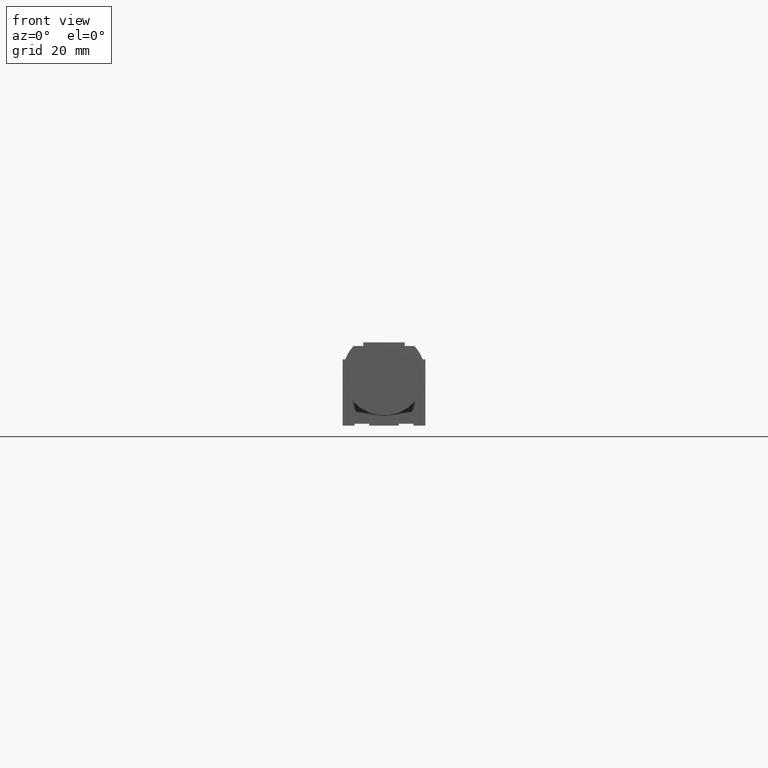
[diagram: clean part render]
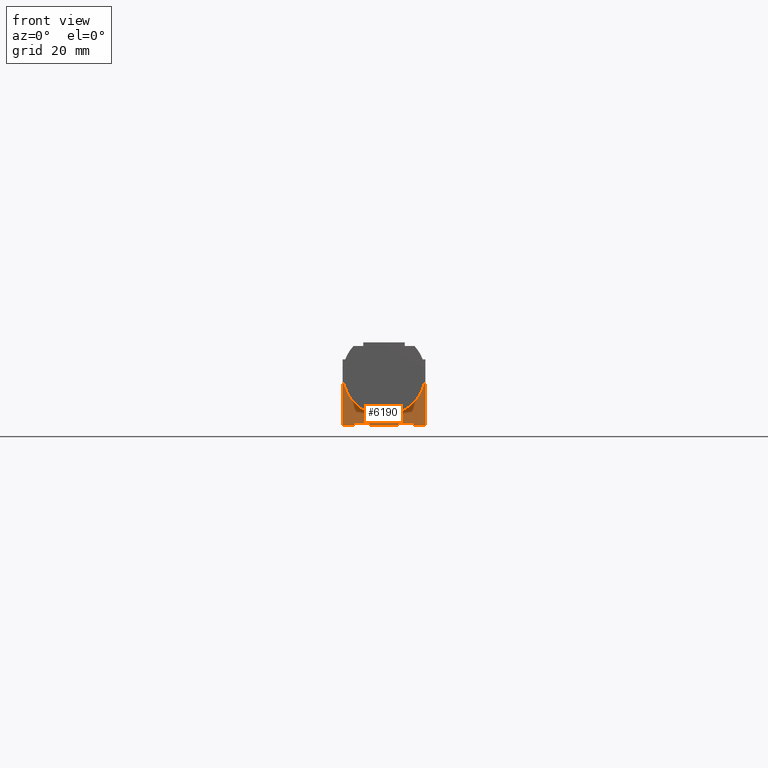
[diagram: same view with one face highlighted and labeled with its STEP entity id]
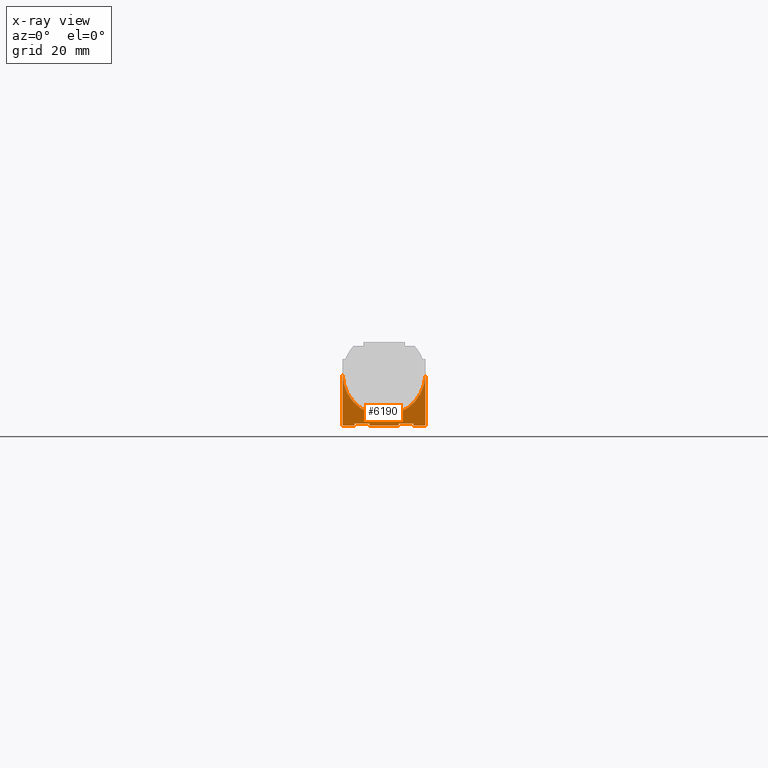
[diagram: x-ray of the same camera — body ghosted, the highlighted face saturated]
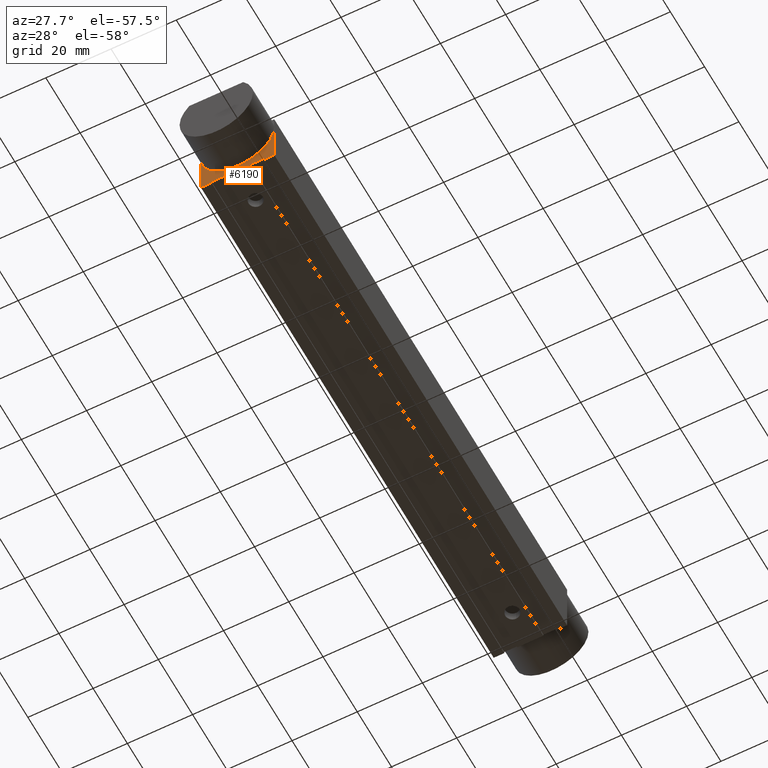
[diagram: same view with one face highlighted and labeled with its STEP entity id]
A machine part, front view. The second image highlights one B-rep face of the part: STEP entity #6190.
The next image is the same camera in x-ray: the body ghosted, the highlighted face saturated — about 0% of this face is hidden behind the body in this view.
A second angle (auxiliary view) of the same face is appended — the face is thin or edge-on in the first view.
In plain terms, the highlighted planar face has unit normal (0, 1, 0).
Its self-contained STEP definition (entity closure, byte-faithful):
#2390=CARTESIAN_POINT('',(12.5,10.05,-20.8));
#2400=DIRECTION('',(1.,-0.,0.));
#2410=DIRECTION('',(0.,0.,-1.));
#2420=AXIS2_PLACEMENT_3D('',#2390,#2400,#2410);
#2430=PLANE('',#2420);
#2440=CARTESIAN_POINT('',(12.5,0.,-18.));
#2450=DIRECTION('',(-1.,0.,0.));
#2460=DIRECTION('',(0.,0.,1.));
#2470=AXIS2_PLACEMENT_3D('',#2440,#2450,#2460);
#2480=CIRCLE('',#2470,11.2492250572074);
#2490=CARTESIAN_POINT('',(12.5,11.2492250572074,-18.));
#2500=VERTEX_POINT('',#2490);
#2540=CARTESIAN_POINT('',(12.5,11.25,0.));
#2550=DIRECTION('',(0.,0.,-1.));
#2560=VECTOR('',#2550,1.);
#2570=LINE('',#2540,#2560);
#3290=CARTESIAN_POINT('',(12.5,11.25,-4.));
#3300=VERTEX_POINT('',#3290);
#3330=EDGE_CURVE('',#3300,#2500,#2570,.T.);
#3520=CARTESIAN_POINT('',(12.5,-11.25,0.));
#3530=DIRECTION('',(0.,0.,1.));
#3540=VECTOR('',#3530,1.);
#3550=LINE('',#3520,#3540);
#3580=CARTESIAN_POINT('',(12.5,-11.2492250572074,-18.));
#3590=VERTEX_POINT('',#3580);
#3620=CARTESIAN_POINT('',(12.5,-11.25,-4.));
#3630=VERTEX_POINT('',#3620);
#3640=EDGE_CURVE('',#3590,#3630,#3550,.T.);
#4670=CARTESIAN_POINT('',(12.5,0.,-4.));
#4680=DIRECTION('',(0.,-1.,0.));
#4690=VECTOR('',#4680,1.);
#4700=LINE('',#4670,#4690);
#4710=CARTESIAN_POINT('',(12.5,-8.,-4.));
#4720=VERTEX_POINT('',#4710);
#4730=EDGE_CURVE('',#4720,#3630,#4700,.T.);
#5010=CARTESIAN_POINT('',(12.5,-4.00000000000001,-4.));
#5020=VERTEX_POINT('',#5010);
#5050=CARTESIAN_POINT('',(12.5,0.,-4.));
#5060=DIRECTION('',(0.,-1.,0.));
#5070=VECTOR('',#5060,1.);
#5080=LINE('',#5050,#5070);
#5090=CARTESIAN_POINT('',(12.5,4.,-4.));
#5100=VERTEX_POINT('',#5090);
#5110=EDGE_CURVE('',#5100,#5020,#5080,.T.);
#5590=ORIENTED_EDGE('',*,*,#3330,.T.);
#5600=CARTESIAN_POINT('',(12.5,0.,-4.));
#5610=DIRECTION('',(0.,-1.,0.));
#5620=VECTOR('',#5610,1.);
#5630=LINE('',#5600,#5620);
#5640=CARTESIAN_POINT('',(12.5,7.99999999999999,-4.));
#5650=VERTEX_POINT('',#5640);
#5660=EDGE_CURVE('',#3300,#5650,#5630,.T.);
#5670=ORIENTED_EDGE('',*,*,#5660,.F.);
#5680=CARTESIAN_POINT('',(12.5,7.99999999999997,0.));
#5690=DIRECTION('',(0.,4.33257765707378E-15,-1.));
#5700=VECTOR('',#5690,1.);
#5710=LINE('',#5680,#5700);
#5720=CARTESIAN_POINT('',(12.5,7.99999999999999,-4.50000000000001));
#5730=VERTEX_POINT('',#5720);
#5740=EDGE_CURVE('',#5650,#5730,#5710,.T.);
#5750=ORIENTED_EDGE('',*,*,#5740,.F.);
#5760=CARTESIAN_POINT('',(12.5,0.,-4.50000000000001));
#5770=DIRECTION('',(0.,-1.,0.));
#5780=VECTOR('',#5770,1.);
#5790=LINE('',#5760,#5780);
#5800=CARTESIAN_POINT('',(12.5,4.,-4.50000000000001));
#5810=VERTEX_POINT('',#5800);
#5820=EDGE_CURVE('',#5730,#5810,#5790,.T.);
#5830=ORIENTED_EDGE('',*,*,#5820,.F.);
#5840=CARTESIAN_POINT('',(12.5,4.,0.));
#5850=DIRECTION('',(0.,0.,1.));
#5860=VECTOR('',#5850,1.);
#5870=LINE('',#5840,#5860);
#5880=EDGE_CURVE('',#5810,#5100,#5870,.T.);
#5890=ORIENTED_EDGE('',*,*,#5880,.F.);
#5900=ORIENTED_EDGE('',*,*,#5110,.F.);
#5910=CARTESIAN_POINT('',(12.5,-4.00000000000003,0.));
#5920=DIRECTION('',(0.,4.03717463500056E-15,-1.));
#5930=VECTOR('',#5920,1.);
#5940=LINE('',#5910,#5930);
#5950=CARTESIAN_POINT('',(12.5,-4.00000000000001,-4.50000000000001));
#5960=VERTEX_POINT('',#5950);
#5970=EDGE_CURVE('',#5020,#5960,#5940,.T.);
#5980=ORIENTED_EDGE('',*,*,#5970,.F.);
#5990=CARTESIAN_POINT('',(12.5,0.,-4.50000000000001));
#6000=DIRECTION('',(0.,-1.,0.));
#6010=VECTOR('',#6000,1.);
#6020=LINE('',#5990,#6010);
#6030=CARTESIAN_POINT('',(12.5,-8.,-4.50000000000001));
#6040=VERTEX_POINT('',#6030);
#6050=EDGE_CURVE('',#5960,#6040,#6020,.T.);
#6060=ORIENTED_EDGE('',*,*,#6050,.F.);
#6070=CARTESIAN_POINT('',(12.5,-8.,0.));
#6080=DIRECTION('',(0.,0.,1.));
#6090=VECTOR('',#6080,1.);
#6100=LINE('',#6070,#6090);
#6110=EDGE_CURVE('',#6040,#4720,#6100,.T.);
#6120=ORIENTED_EDGE('',*,*,#6110,.F.);
#6130=ORIENTED_EDGE('',*,*,#4730,.F.);
#6140=ORIENTED_EDGE('',*,*,#3640,.T.);
#6150=EDGE_CURVE('',#3590,#2500,#2480,.T.);
#6160=ORIENTED_EDGE('',*,*,#6150,.F.);
#6170=EDGE_LOOP('',(#6160,#6140,#6130,#6120,#6060,#5980,#5900,#5890,
#5830,#5750,#5670,#5590));
#6180=FACE_OUTER_BOUND('',#6170,.T.);
#6190=ADVANCED_FACE('',(#6180),#2430,.F.);